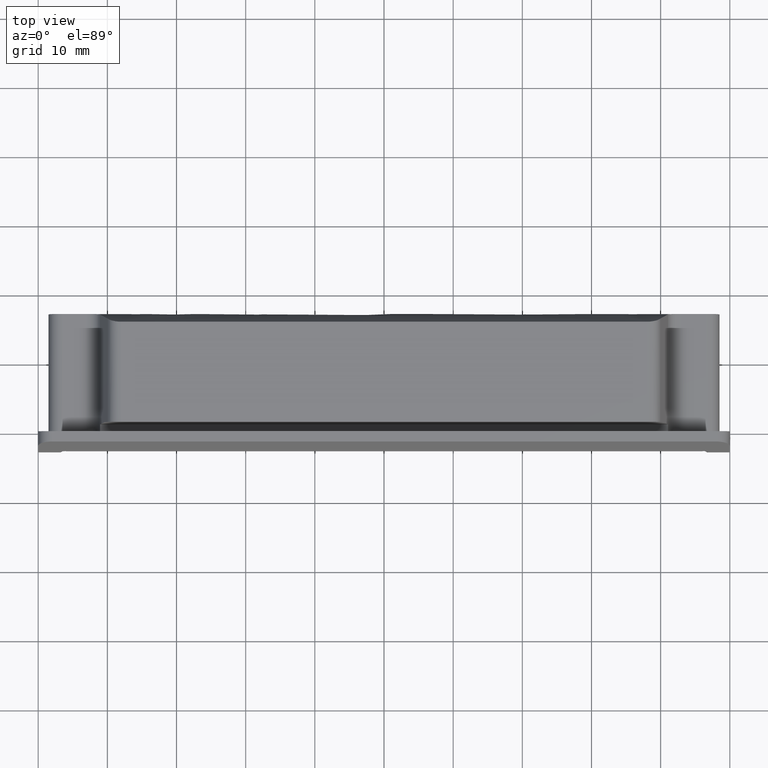
[diagram: clean part render]
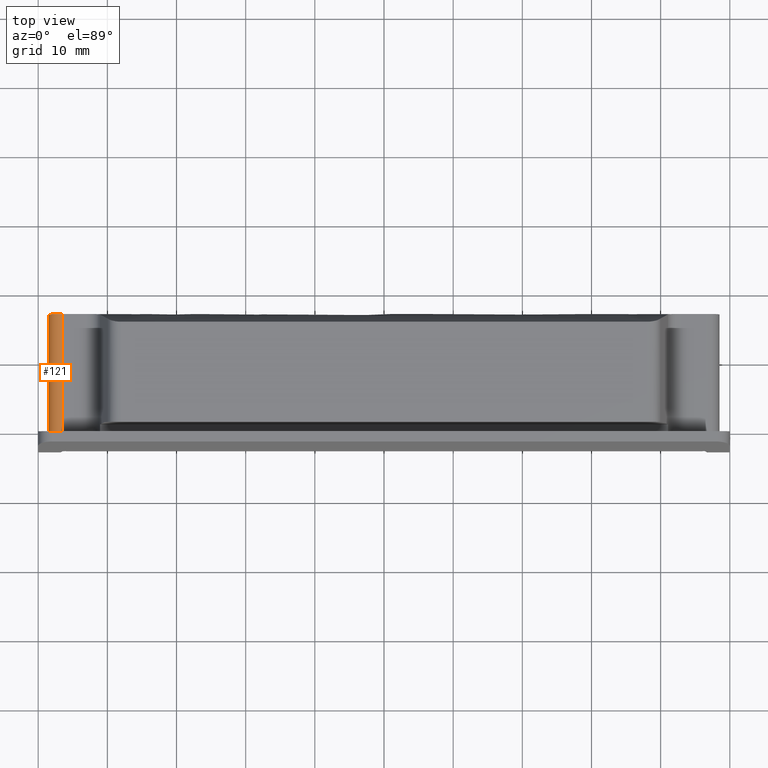
[diagram: same view with one face highlighted and labeled with its STEP entity id]
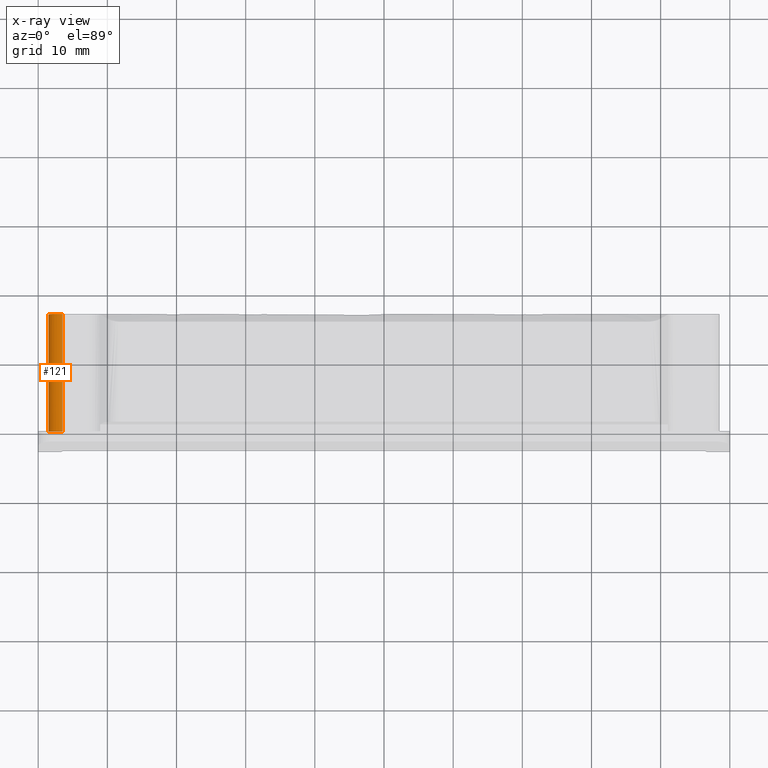
[diagram: x-ray of the same camera — body ghosted, the highlighted face saturated]
A machine part, top view. The second image highlights one B-rep face of the part: STEP entity #121.
The next image is the same camera in x-ray: the body ghosted, the highlighted face saturated — about 0% of this face is hidden behind the body in this view.
In plain terms, the highlighted face is a freeform B-spline surface patch.
Its self-contained STEP definition (entity closure, byte-faithful):
#44=CARTESIAN_POINT('',(-48.499314649951117,17.424988350041691,-8.552353896615747));
#45=CARTESIAN_POINT('',(-48.499314649951117,-0.435624708751042,-8.552353896615747));
#46=CARTESIAN_POINT('',(-48.556984520332513,17.424988350041691,-6.350030398890557));
#47=CARTESIAN_POINT('',(-48.556984520332513,-0.435624708751043,-6.350030398890557));
#48=CARTESIAN_POINT('',(-46.359359848748035,17.424988350041694,-6.504951041238377));
#49=CARTESIAN_POINT('',(-46.359359848748035,-0.435624708751043,-6.504951041238377));
#57=(BOUNDED_SURFACE()B_SPLINE_SURFACE(1,2,((#44,#46,#48),(#45,#47,#49)),.UNSPECIFIED.,.F.,.F.,.U.)B_SPLINE_SURFACE_WITH_KNOTS((2,2),(3,3),(0.0,17.860613058792740),(0.0,3.542284688176723),.UNSPECIFIED.)GEOMETRIC_REPRESENTATION_ITEM()RATIONAL_B_SPLINE_SURFACE(((1.0,0.670944223154768,0.996392648609106),(1.0,0.670944223154768,0.996392648609106)))REPRESENTATION_ITEM('')SURFACE());
#58=CARTESIAN_POINT('',(-48.500000000000000,16.936224460445850,-8.500000000000000));
#59=VERTEX_POINT('',#58);
#60=CARTESIAN_POINT('',(-46.500000000000000,16.995917526767300,-6.500000000000000));
#61=VERTEX_POINT('',#60);
#62=CARTESIAN_POINT('',(-48.500000000000000,16.936224460445850,-8.500000000000000));
#63=CARTESIAN_POINT('',(-48.500000000000007,16.946767081379480,-8.368301468287195));
#64=CARTESIAN_POINT('',(-48.487117910789273,16.955830002085609,-8.238693362466826));
#65=CARTESIAN_POINT('',(-48.449179519935797,16.967401333750718,-8.047309281503974));
#66=CARTESIAN_POINT('',(-48.433408158251297,16.970920778860389,-7.984023083469351));
#67=CARTESIAN_POINT('',(-48.395460753663549,16.977313234309442,-7.858495661662105));
#68=CARTESIAN_POINT('',(-48.373180673369397,16.980189741083080,-7.796094570830041));
#69=CARTESIAN_POINT('',(-48.298089947534123,16.987744089118149,-7.614546842698606));
#70=CARTESIAN_POINT('',(-48.236786231711442,16.991425717502750,-7.499674646472360));
#71=CARTESIAN_POINT('',(-48.128086207402333,16.995397606335541,-7.336554853824461));
#72=CARTESIAN_POINT('',(-48.088883762359799,16.996465110457031,-7.283532949664604));
#73=CARTESIAN_POINT('',(-48.005350315227943,16.998139956157470,-7.181567550730984));
#74=CARTESIAN_POINT('',(-47.961389317308431,16.998742755942470,-7.133034003198278));
#75=CARTESIAN_POINT('',(-47.823125015223660,17.000008441662558,-6.994556780642089));
#76=CARTESIAN_POINT('',(-47.722500909762033,17.000132586486430,-6.911668974542001));
#77=CARTESIAN_POINT('',(-47.585896214795810,16.999832242813611,-6.820145570073938));
#78=CARTESIAN_POINT('',(-47.557954980450347,16.999748745617900,-6.802409092449610));
#79=CARTESIAN_POINT('',(-47.501514846032407,16.999547694104571,-6.768511725932236));
#80=CARTESIAN_POINT('',(-47.472979903630822,16.999430174215011,-6.752321349907540));
#81=CARTESIAN_POINT('',(-47.386447436399230,16.999042766131900,-6.705984066421078));
#82=CARTESIAN_POINT('',(-47.268601484611992,16.998434317255700,-6.650147388540859));
#83=CARTESIAN_POINT('',(-47.145887079405597,16.997788151873308,-6.606032772181696));
#84=CARTESIAN_POINT('',(-47.020703029460741,16.997182842205120,-6.567863789867993));
#85=CARTESIAN_POINT('',(-46.956577914212730,16.996899585367380,-6.551699066967096));
#86=CARTESIAN_POINT('',(-46.762776653838813,16.996192000619569,-6.512964997839176));
#87=CARTESIAN_POINT('',(-46.632121587725912,16.995917526767339,-6.499999999999998));
#88=CARTESIAN_POINT('',(-46.500000000000000,16.995917526767350,-6.500000000000000));
#89=B_SPLINE_CURVE_WITH_KNOTS('',3,(#62,#63,#64,#65,#66,#67,#68,#69,#70,#71,#72,#73,#74,#75,#76,#77,#78,#79,#80,#81,#82,#83,#84,#85,#86,#87,#88),.UNSPECIFIED.,.F.,.U.,(4,2,2,2,2,2,2,2,2,2,1,2,2,4),(0.0,0.124999999999993,0.187499999999990,0.249999999999988,0.374999999999985,0.437499999999984,0.499999999999982,0.624999999999982,0.656249999999981,0.687499999999980,0.749999999999984,0.812499999999988,0.874999999999992,1.0),.UNSPECIFIED.);
#90=EDGE_CURVE('',#59,#61,#89,.T.);
#91=ORIENTED_EDGE('',*,*,#90,.F.);
#92=CARTESIAN_POINT('',(-48.500000000000000,0.0,-8.500000000000000));
#93=VERTEX_POINT('',#92);
#94=CARTESIAN_POINT('',(-48.500000000000000,0.0,-8.500000000000000));
#95=CARTESIAN_POINT('',(-48.500000000000000,16.936224460445850,-8.500000000000000));
#96=QUASI_UNIFORM_CURVE('',1,(#94,#95),.UNSPECIFIED.,.F.,.U.);
#97=EDGE_CURVE('',#93,#59,#96,.T.);
#98=ORIENTED_EDGE('',*,*,#97,.F.);
#99=CARTESIAN_POINT('',(-46.500000000000000,0.0,-6.500000000000000));
#100=VERTEX_POINT('',#99);
#101=CARTESIAN_POINT('',(-46.500000000000000,0.0,-6.500000000000001));
#102=CARTESIAN_POINT('',(-48.500000000000007,0.0,-6.500000000000003));
#103=CARTESIAN_POINT('',(-48.500000000000000,0.0,-8.500000000000000));
#111=(BOUNDED_CURVE()B_SPLINE_CURVE(2,(#101,#102,#103),.UNSPECIFIED.,.F.,.U.)CURVE()GEOMETRIC_REPRESENTATION_ITEM()QUASI_UNIFORM_CURVE()RATIONAL_B_SPLINE_CURVE((1.0,0.707106781186548,1.0))REPRESENTATION_ITEM(''));
#112=EDGE_CURVE('',#100,#93,#111,.T.);
#113=ORIENTED_EDGE('',*,*,#112,.F.);
#114=CARTESIAN_POINT('',(-46.500000000000000,16.995917526767300,-6.500000000000000));
#115=CARTESIAN_POINT('',(-46.500000000000000,0.0,-6.500000000000000));
#116=QUASI_UNIFORM_CURVE('',1,(#114,#115),.UNSPECIFIED.,.F.,.U.);
#117=EDGE_CURVE('',#61,#100,#116,.T.);
#118=ORIENTED_EDGE('',*,*,#117,.F.);
#119=EDGE_LOOP('',(#91,#98,#113,#118));
#120=FACE_OUTER_BOUND('',#119,.T.);
#121=ADVANCED_FACE('',(#120),#57,.T.);